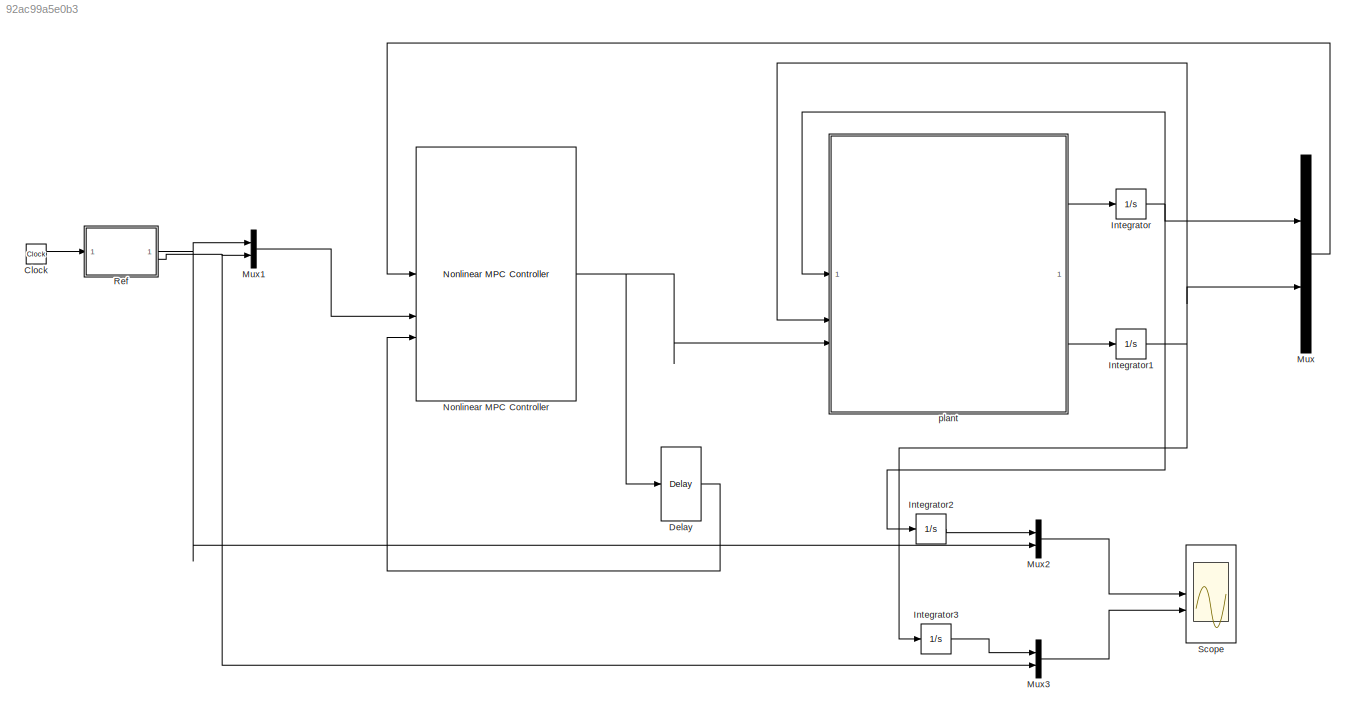
MODEL slx_92ac99a5e0b3
KIND model
CONFIG AbsTol = auto
CONFIG EnableMultiTasking = off
CONFIG FixedStep = auto
CONFIG MaxStep = auto
CONFIG MinStep = auto
CONFIG RelTol = 1e-3
CONFIG SampleTimeConstraint = Unconstrained
CONFIG SolverName = VariableStepAuto
CONFIG StartTime = 0.0
CONFIG StopTime = 10.0
BLOCK [Clock] Clock
BLOCK [Delay] Delay
  DelayLength = 1
  InitialCondition = 0
  InputPortMap = u0
BLOCK [Integrator] Integrator
BLOCK [Integrator] Integrator1
BLOCK [Integrator] Integrator2
BLOCK [Integrator] Integrator3
BLOCK [Mux] Mux
  DisplayOption = bar
  Inputs = 2
BLOCK [Mux] Mux1
  DisplayOption = bar
  Inputs = 2
BLOCK [Mux] Mux2
  DisplayOption = bar
  Inputs = 2
BLOCK [Mux] Mux3
  DisplayOption = bar
  Inputs = 2
BLOCK [Reference] Nonlinear MPC Controller  REF=mpclib/Nonlinear MPC Controller  (lib defined in mdl_ae329e0e0455)
  SourceBlock = mpclib/Nonlinear MPC Controller
  SourceType = NonlinearMPC
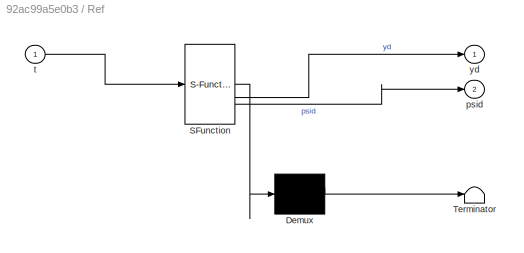
BLOCK [SubSystem] Ref
  ErrorFcn = Stateflow.Translate.translate
  LibrarySourceBlock = simulink/User-Defined\nFunctions/MATLAB Function
  PermitHierarchicalResolution = ExplicitOnly
  SFBlockType = MATLAB Function
  TreatAsAtomicUnit = on
BLOCK [Demux] Ref/ Demux 
  Outputs = 1
BLOCK [S-Function] Ref/ SFunction 
  EnableBusSupport = on
  FunctionName = sf_sfun
  PortCounts = [1 3]
  SFcnIsStateOwnerBlock = off
  SFunctionDeploymentMode = off
  Tag = Stateflow S-Function 1
BLOCK [Terminator] Ref/ Terminator 
BLOCK [Outport] Ref/psid
  Port = 2
BLOCK [Inport] Ref/t
BLOCK [Outport] Ref/yd
BLOCK [Scope] Scope
  Floating = off
  NumInputPorts = 2
  ScopeSpecificationString = Simulink.scopes.TimeScopeBlockCfg('CurrentConfiguration', extmgr.ConfigurationSet(extmgr.Configuration('Core','General UI',true),extmgr.Configuration('Core','Source UI',true),extmgr.Configuration('Sources','WiredSimulink',true),extmgr.Configuration('Visuals','Time Domain',true,'SerializedDisplays',{struct('MinYLimReal','-10','MaxYLimReal','10','YLabelReal','','MinYLimMag','0','MaxYLimMag','10','Le...<+2053ch>
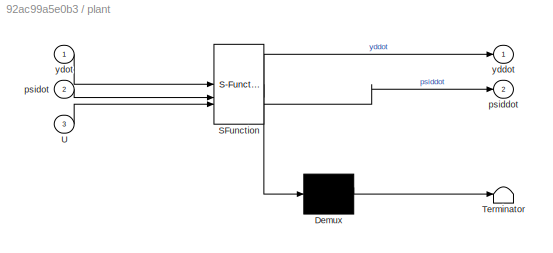
BLOCK [SubSystem] plant
  ErrorFcn = Stateflow.Translate.translate
  LibrarySourceBlock = simulink/User-Defined\nFunctions/MATLAB Function
  PermitHierarchicalResolution = ExplicitOnly
  SFBlockType = MATLAB Function
  TreatAsAtomicUnit = on
BLOCK [Demux] plant/ Demux 
  Outputs = 1
BLOCK [S-Function] plant/ SFunction 
  EnableBusSupport = on
  FunctionName = sf_sfun
  PortCounts = [3 3]
  SFcnIsStateOwnerBlock = off
  SFunctionDeploymentMode = off
  Tag = Stateflow S-Function 2
BLOCK [Terminator] plant/ Terminator 
BLOCK [Inport] plant/U
  Port = 3
BLOCK [Outport] plant/psiddot
  Port = 2
BLOCK [Inport] plant/psidot
  Port = 2
BLOCK [Outport] plant/yddot
BLOCK [Inport] plant/ydot
LINE Clock:1 -> Ref:1
LINE Delay:1 -> Nonlinear MPC Controller:3
NET Integrator1:1 -> Integrator3:1, Mux:2, plant:2
LINE Integrator2:1 -> Mux2:1
LINE Integrator3:1 -> Mux3:1
NET Integrator:1 -> Integrator2:1, Mux:1, plant:1
LINE Mux1:1 -> Nonlinear MPC Controller:2
LINE Mux2:1 -> Scope:1
LINE Mux3:1 -> Scope:2
LINE Mux:1 -> Nonlinear MPC Controller:1
NET Nonlinear MPC Controller:1 -> Delay:1, plant:3
NET Ref:1 -> Mux1:1, Mux2:2
NET Ref:2 -> Mux1:2, Mux3:2
LINE plant:1 -> Integrator:1
LINE plant:2 -> Integrator1:1
note: NET lines group one-source signal fan-out (src -> all destinations, sorted); 1:1 wires keep LINE
CHART Ref states=1 transitions=1
  STATE_LABEL 'eML_blk_kernel()'
  STATE_LABEL 'SCRIPT:\nfunction [yd,psid]= fcn(t)\n%yd=10*(tanh(3*t-35)-tanh(3*t-6));\n%psid=(sech(3*t-60))^2-(sech(3*t-35)^2);\nyd = 1.5*(tanh(t-6) - tanh(t-14));\npsid = 1.5*(-(sech(t-14))^2 + (sech(t-6))^2)/20;\nend\n'
CHART plant states=1 transitions=1
  STATE_LABEL 'eML_blk_kernel()'
  STATE_LABEL 'SCRIPT:\nfunction [yddot, psiddot] = State(ydot, psidot, U)\nm=1350; %kg\nJ=1350; %kgm^2\ncf=55000; %N/rad\ncm=100000; %N/rad\ncr=120000; %N/rad\nlf=2.5; %m\nlm=0.5; %m\nlr=3; %m\nvx=20; %m/s\na1 = (-2*lf*cf - 2*lm*cm + 2*lr*cr)/(J*vx);\na2 = 2*((lf^2)*cf + (lm^2)*cm - (lr^2)*cr)/(J*vx);\na3 = 2*lf*cf/J;\na4 = 2*lm*cm/J;\na5 = -2*lr*cr/J;\n\nb1 = 2*(-cf - cr - cm)/(m*vx);\nb2 = 2*(lf*cf + lm*cm + lr*cr)/(m*vx)-vx;\n...<+181ch>'
CHART  states=0 transitions=0
CHART  states=0 transitions=0
